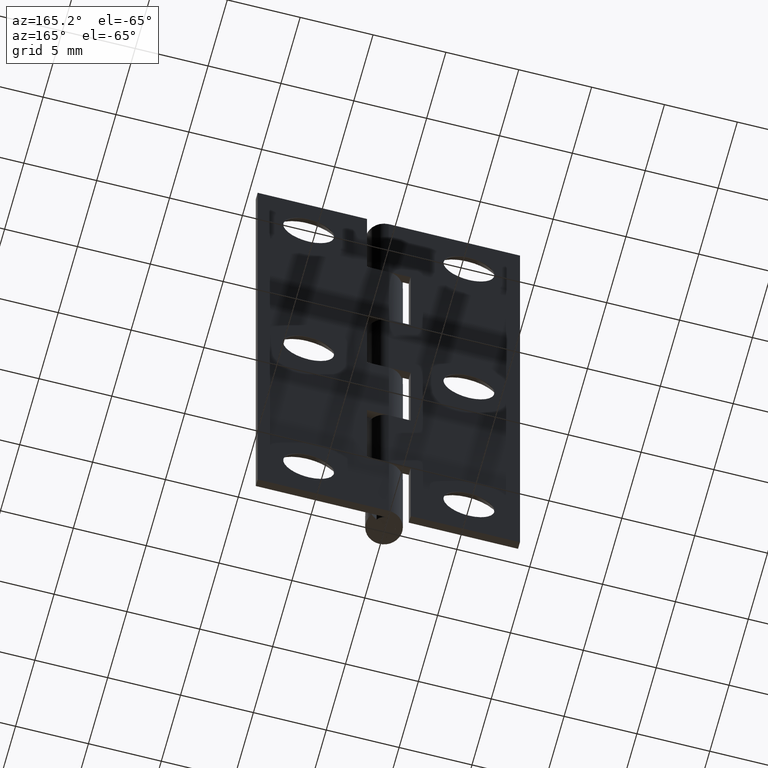
[diagram: clean part render]
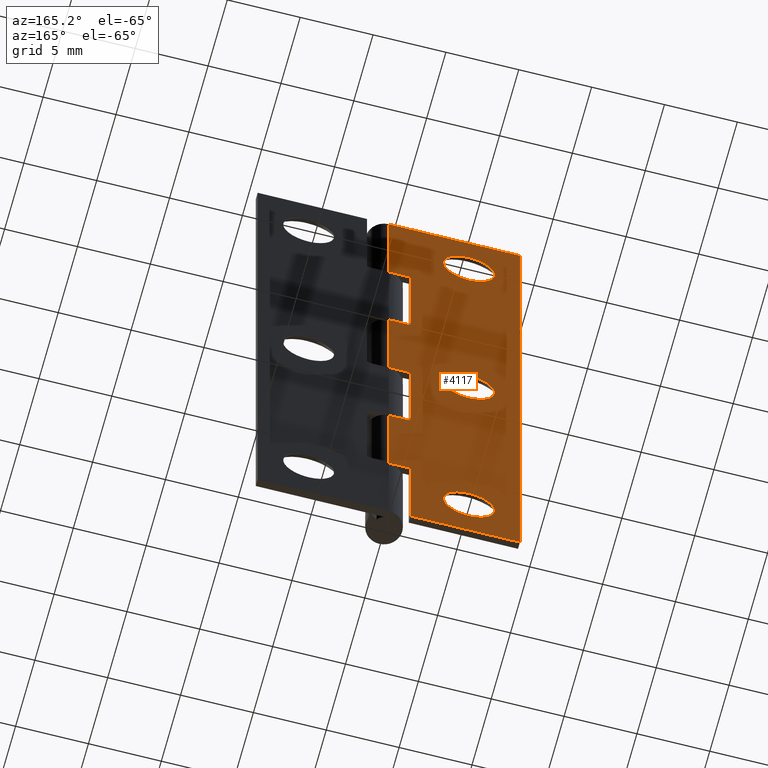
[diagram: same view with one face highlighted and labeled with its STEP entity id]
A machine part, auxiliary view. The second image highlights one B-rep face of the part: STEP entity #4117.
In plain terms, the highlighted face is a freeform B-spline surface patch.
Its self-contained STEP definition (entity closure, byte-faithful):
#2295=CARTESIAN_POINT('',(-4.558762897021225,1.250000000000000,42.475321224673337));
#2296=VERTEX_POINT('',#2295);
#2302=CARTESIAN_POINT('',(-5.500000000000000,1.250000000000000,39.250000000000000));
#2303=VERTEX_POINT('',#2302);
#2304=CARTESIAN_POINT('',(-5.500000000000000,1.250000000000000,39.250000000000000));
#2305=CARTESIAN_POINT('',(-3.750000000000000,1.250000000000000,39.250000000000007));
#2306=CARTESIAN_POINT('',(-3.750000000000000,1.250000000000000,41.0));
#2307=CARTESIAN_POINT('',(-3.750000000000000,1.250000000000000,41.959340275266690));
#2308=CARTESIAN_POINT('',(-4.558762897021225,1.250000000000000,42.475321224673344));
#2316=(BOUNDED_CURVE()B_SPLINE_CURVE(2,(#2304,#2305,#2306,#2307,#2308),.UNSPECIFIED.,.F.,.U.)B_SPLINE_CURVE_WITH_KNOTS((3,2,3),(0.0,0.250000000000000,0.407950297421891),.UNSPECIFIED.)CURVE()GEOMETRIC_REPRESENTATION_ITEM()RATIONAL_B_SPLINE_CURVE((1.0,0.707106781186547,1.0,0.814949715902240,0.863729411094454))REPRESENTATION_ITEM(''));
#2317=EDGE_CURVE('',#2303,#2296,#2316,.T.);
#2319=CARTESIAN_POINT('',(-7.244605423650906,1.250000000000000,41.137302278810431));
#2320=VERTEX_POINT('',#2319);
#2321=CARTESIAN_POINT('',(-7.244605423650906,1.250000000000000,41.137302278810431));
#2322=CARTESIAN_POINT('',(-7.249999999999999,1.250000000000000,41.068757115264603));
#2323=CARTESIAN_POINT('',(-7.249999999999999,1.250000000000000,41.0));
#2324=CARTESIAN_POINT('',(-7.249999999999999,1.250000000000000,39.250000000000007));
#2325=CARTESIAN_POINT('',(-5.500000000000000,1.250000000000000,39.250000000000000));
#2333=(BOUNDED_CURVE()B_SPLINE_CURVE(2,(#2321,#2322,#2323,#2324,#2325),.UNSPECIFIED.,.F.,.U.)B_SPLINE_CURVE_WITH_KNOTS((3,2,3),(0.736331412522463,0.750000000000000,1.0),.UNSPECIFIED.)CURVE()GEOMETRIC_REPRESENTATION_ITEM()RATIONAL_B_SPLINE_CURVE((0.969723589677193,0.983986253668284,1.0,0.707106781186547,1.0))REPRESENTATION_ITEM(''));
#2334=EDGE_CURVE('',#2320,#2303,#2333,.T.);
#2438=CARTESIAN_POINT('',(-5.500000000000000,1.250000000000000,42.750000000000000));
#2439=VERTEX_POINT('',#2438);
#2440=CARTESIAN_POINT('',(-5.500000000000000,1.250000000000000,42.750000000000000));
#2441=CARTESIAN_POINT('',(-7.117684419537733,1.250000000000000,42.750000000000000));
#2442=CARTESIAN_POINT('',(-7.244605423650906,1.250000000000000,41.137302278810431));
#2450=(BOUNDED_CURVE()B_SPLINE_CURVE(2,(#2440,#2441,#2442),.UNSPECIFIED.,.F.,.U.)B_SPLINE_CURVE_WITH_KNOTS((3,3),(0.500000000000000,0.736331412522463),.UNSPECIFIED.)CURVE()GEOMETRIC_REPRESENTATION_ITEM()RATIONAL_B_SPLINE_CURVE((1.0,0.723120527518264,0.969723589677193))REPRESENTATION_ITEM(''));
#2451=EDGE_CURVE('',#2439,#2320,#2450,.T.);
#2453=CARTESIAN_POINT('',(-4.558762897021225,1.250000000000000,42.475321224673337));
#2454=CARTESIAN_POINT('',(-4.989302052269124,1.250000000000000,42.749999999999993));
#2455=CARTESIAN_POINT('',(-5.500000000000000,1.250000000000000,42.750000000000000));
#2463=(BOUNDED_CURVE()B_SPLINE_CURVE(2,(#2453,#2454,#2455),.UNSPECIFIED.,.F.,.U.)B_SPLINE_CURVE_WITH_KNOTS((3,3),(0.407950297421892,0.500000000000000),.UNSPECIFIED.)CURVE()GEOMETRIC_REPRESENTATION_ITEM()RATIONAL_B_SPLINE_CURVE((0.863729411094454,0.892157065284307,1.0))REPRESENTATION_ITEM(''));
#2464=EDGE_CURVE('',#2296,#2439,#2463,.T.);
#2639=CARTESIAN_POINT('',(-4.558762897021225,1.250000000000000,23.975321224673340));
#2640=VERTEX_POINT('',#2639);
#2646=CARTESIAN_POINT('',(-5.500000000000000,1.250000000000000,20.750000000000000));
#2647=VERTEX_POINT('',#2646);
#2648=CARTESIAN_POINT('',(-5.500000000000000,1.250000000000000,20.750000000000000));
#2649=CARTESIAN_POINT('',(-3.750000000000000,1.250000000000000,20.750000000000000));
#2650=CARTESIAN_POINT('',(-3.750000000000000,1.250000000000000,22.500000000000000));
#2651=CARTESIAN_POINT('',(-3.750000000000000,1.250000000000000,23.459340275266690));
#2652=CARTESIAN_POINT('',(-4.558762897021225,1.250000000000000,23.975321224673333));
#2660=(BOUNDED_CURVE()B_SPLINE_CURVE(2,(#2648,#2649,#2650,#2651,#2652),.UNSPECIFIED.,.F.,.U.)B_SPLINE_CURVE_WITH_KNOTS((3,2,3),(0.0,0.250000000000000,0.407950297421891),.UNSPECIFIED.)CURVE()GEOMETRIC_REPRESENTATION_ITEM()RATIONAL_B_SPLINE_CURVE((1.0,0.707106781186547,1.0,0.814949715902240,0.863729411094454))REPRESENTATION_ITEM(''));
#2661=EDGE_CURVE('',#2647,#2640,#2660,.T.);
#2663=CARTESIAN_POINT('',(-7.244605423650905,1.250000000000000,22.637302278810431));
#2664=VERTEX_POINT('',#2663);
#2665=CARTESIAN_POINT('',(-7.244605423650905,1.250000000000000,22.637302278810427));
#2666=CARTESIAN_POINT('',(-7.250000000000000,1.250000000000000,22.568757115264610));
#2667=CARTESIAN_POINT('',(-7.249999999999999,1.250000000000000,22.500000000000000));
#2668=CARTESIAN_POINT('',(-7.249999999999999,1.250000000000000,20.750000000000000));
#2669=CARTESIAN_POINT('',(-5.500000000000000,1.250000000000000,20.750000000000000));
#2677=(BOUNDED_CURVE()B_SPLINE_CURVE(2,(#2665,#2666,#2667,#2668,#2669),.UNSPECIFIED.,.F.,.U.)B_SPLINE_CURVE_WITH_KNOTS((3,2,3),(0.736331412522463,0.750000000000000,1.0),.UNSPECIFIED.)CURVE()GEOMETRIC_REPRESENTATION_ITEM()RATIONAL_B_SPLINE_CURVE((0.969723589677193,0.983986253668284,1.0,0.707106781186547,1.0))REPRESENTATION_ITEM(''));
#2678=EDGE_CURVE('',#2664,#2647,#2677,.T.);
#2782=CARTESIAN_POINT('',(-5.500000000000000,1.250000000000000,24.250000000000000));
#2783=VERTEX_POINT('',#2782);
#2784=CARTESIAN_POINT('',(-5.500000000000000,1.250000000000000,24.250000000000000));
#2785=CARTESIAN_POINT('',(-7.117684419537731,1.250000000000000,24.250000000000000));
#2786=CARTESIAN_POINT('',(-7.244605423650905,1.250000000000000,22.637302278810424));
#2794=(BOUNDED_CURVE()B_SPLINE_CURVE(2,(#2784,#2785,#2786),.UNSPECIFIED.,.F.,.U.)B_SPLINE_CURVE_WITH_KNOTS((3,3),(0.500000000000000,0.736331412522463),.UNSPECIFIED.)CURVE()GEOMETRIC_REPRESENTATION_ITEM()RATIONAL_B_SPLINE_CURVE((1.0,0.723120527518264,0.969723589677192))REPRESENTATION_ITEM(''));
#2795=EDGE_CURVE('',#2783,#2664,#2794,.T.);
#2797=CARTESIAN_POINT('',(-4.558762897021225,1.250000000000000,23.975321224673337));
#2798=CARTESIAN_POINT('',(-4.989302052269124,1.250000000000000,24.249999999999993));
#2799=CARTESIAN_POINT('',(-5.500000000000000,1.250000000000000,24.250000000000000));
#2807=(BOUNDED_CURVE()B_SPLINE_CURVE(2,(#2797,#2798,#2799),.UNSPECIFIED.,.F.,.U.)B_SPLINE_CURVE_WITH_KNOTS((3,3),(0.407950297421892,0.500000000000000),.UNSPECIFIED.)CURVE()GEOMETRIC_REPRESENTATION_ITEM()RATIONAL_B_SPLINE_CURVE((0.863729411094454,0.892157065284307,1.0))REPRESENTATION_ITEM(''));
#2808=EDGE_CURVE('',#2640,#2783,#2807,.T.);
#2977=CARTESIAN_POINT('',(-3.761428913972535,1.250000000000000,3.800323815067302));
#2978=VERTEX_POINT('',#2977);
#2984=CARTESIAN_POINT('',(-5.500000000000000,1.250000000000000,2.250000000000000));
#2985=VERTEX_POINT('',#2984);
#2986=CARTESIAN_POINT('',(-3.761428913972535,1.250000000000000,3.800323815067303));
#2987=CARTESIAN_POINT('',(-3.939484779089450,1.250000000000000,2.250000000000000));
#2988=CARTESIAN_POINT('',(-5.500000000000000,1.250000000000000,2.250000000000000));
#2996=(BOUNDED_CURVE()B_SPLINE_CURVE(2,(#2986,#2987,#2988),.UNSPECIFIED.,.F.,.U.)B_SPLINE_CURVE_WITH_KNOTS((3,3),(0.269767760089002,0.500000000000000),.UNSPECIFIED.)CURVE()GEOMETRIC_REPRESENTATION_ITEM()RATIONAL_B_SPLINE_CURVE((0.957343728151316,0.730266152711347,1.0))REPRESENTATION_ITEM(''));
#2997=EDGE_CURVE('',#2978,#2985,#2996,.T.);
#2999=CARTESIAN_POINT('',(-7.246735897174608,1.250000000000000,3.893165054773182));
#3000=VERTEX_POINT('',#2999);
#3001=CARTESIAN_POINT('',(-5.500000000000000,1.250000000000000,2.250000000000000));
#3002=CARTESIAN_POINT('',(-7.146235615119422,1.250000000000000,2.250000000000001));
#3003=CARTESIAN_POINT('',(-7.246735897174608,1.250000000000000,3.893165054773182));
#3011=(BOUNDED_CURVE()B_SPLINE_CURVE(2,(#3001,#3002,#3003),.UNSPECIFIED.,.F.,.U.)B_SPLINE_CURVE_WITH_KNOTS((3,3),(0.500000000000000,0.739332962036338),.UNSPECIFIED.)CURVE()GEOMETRIC_REPRESENTATION_ITEM()RATIONAL_B_SPLINE_CURVE((1.0,0.719603993524076,0.976072041232497))REPRESENTATION_ITEM(''));
#3012=EDGE_CURVE('',#2985,#3000,#3011,.T.);
#3107=CARTESIAN_POINT('',(-5.500000000000000,1.250000000000000,5.750000000000000));
#3108=VERTEX_POINT('',#3107);
#3109=CARTESIAN_POINT('',(-7.246735897174608,1.250000000000000,3.893165054773182));
#3110=CARTESIAN_POINT('',(-7.249999999999999,1.250000000000000,3.946532663183733));
#3111=CARTESIAN_POINT('',(-7.249999999999999,1.250000000000000,4.0));
#3112=CARTESIAN_POINT('',(-7.249999999999999,1.250000000000000,5.750000000000001));
#3113=CARTESIAN_POINT('',(-5.500000000000000,1.250000000000000,5.750000000000000));
#3121=(BOUNDED_CURVE()B_SPLINE_CURVE(2,(#3109,#3110,#3111,#3112,#3113),.UNSPECIFIED.,.F.,.U.)B_SPLINE_CURVE_WITH_KNOTS((3,2,3),(0.739332962036339,0.750000000000000,1.0),.UNSPECIFIED.)CURVE()GEOMETRIC_REPRESENTATION_ITEM()RATIONAL_B_SPLINE_CURVE((0.976072041232500,0.987502787662472,1.0,0.707106781186547,1.0))REPRESENTATION_ITEM(''));
#3122=EDGE_CURVE('',#3000,#3108,#3121,.T.);
#3124=CARTESIAN_POINT('',(-5.500000000000000,1.250000000000000,5.750000000000000));
#3125=CARTESIAN_POINT('',(-3.750000000000000,1.250000000000000,5.750000000000001));
#3126=CARTESIAN_POINT('',(-3.750000000000000,1.250000000000000,4.0));
#3127=CARTESIAN_POINT('',(-3.750000000000000,1.250000000000000,3.899834816855083));
#3128=CARTESIAN_POINT('',(-3.761428913972535,1.250000000000000,3.800323815067303));
#3136=(BOUNDED_CURVE()B_SPLINE_CURVE(2,(#3124,#3125,#3126,#3127,#3128),.UNSPECIFIED.,.F.,.U.)B_SPLINE_CURVE_WITH_KNOTS((3,2,3),(0.0,0.250000000000000,0.269767760089002),.UNSPECIFIED.)CURVE()GEOMETRIC_REPRESENTATION_ITEM()RATIONAL_B_SPLINE_CURVE((1.0,0.707106781186547,1.0,0.976840628475201,0.957343728151316))REPRESENTATION_ITEM(''));
#3137=EDGE_CURVE('',#3108,#2978,#3136,.T.);
#3284=CARTESIAN_POINT('',(-1.500000000000000,1.249999999999972,30.0));
#3285=VERTEX_POINT('',#3284);
#3291=CARTESIAN_POINT('',(-1.500000000000000,1.249999999999972,37.500000000000000));
#3292=VERTEX_POINT('',#3291);
#3293=CARTESIAN_POINT('',(-1.500000000000000,1.249999999999972,30.0));
#3294=CARTESIAN_POINT('',(-1.500000000000000,1.249999999999972,37.500000000000000));
#3295=QUASI_UNIFORM_CURVE('',1,(#3293,#3294),.UNSPECIFIED.,.F.,.U.);
#3296=EDGE_CURVE('',#3285,#3292,#3295,.T.);
#3346=CARTESIAN_POINT('',(0.0,1.250000000000000,30.0));
#3347=VERTEX_POINT('',#3346);
#3367=CARTESIAN_POINT('',(0.0,1.250000000000000,30.0));
#3368=CARTESIAN_POINT('',(-1.500000000000000,1.249999999999972,30.0));
#3369=QUASI_UNIFORM_CURVE('',1,(#3367,#3368),.UNSPECIFIED.,.F.,.U.);
#3370=EDGE_CURVE('',#3347,#3285,#3369,.T.);
#3389=CARTESIAN_POINT('',(0.0,1.250000000000000,37.500000000000000));
#3390=VERTEX_POINT('',#3389);
#3391=CARTESIAN_POINT('',(-1.500000000000000,1.249999999999972,37.500000000000000));
#3392=CARTESIAN_POINT('',(0.0,1.250000000000000,37.500000000000000));
#3393=QUASI_UNIFORM_CURVE('',1,(#3391,#3392),.UNSPECIFIED.,.F.,.U.);
#3394=EDGE_CURVE('',#3292,#3390,#3393,.T.);
#3453=CARTESIAN_POINT('',(-1.500000000000000,1.249999999999972,15.0));
#3454=VERTEX_POINT('',#3453);
#3460=CARTESIAN_POINT('',(-1.500000000000000,1.249999999999972,22.500000000000000));
#3461=VERTEX_POINT('',#3460);
#3462=CARTESIAN_POINT('',(-1.500000000000000,1.249999999999972,22.500000000000000));
#3463=CARTESIAN_POINT('',(-1.500000000000000,1.249999999999972,15.0));
#3464=QUASI_UNIFORM_CURVE('',1,(#3462,#3463),.UNSPECIFIED.,.F.,.U.);
#3465=EDGE_CURVE('',#3461,#3454,#3464,.T.);
#3488=CARTESIAN_POINT('',(0.0,1.249999999999972,22.500000000000000));
#3489=VERTEX_POINT('',#3488);
#3490=CARTESIAN_POINT('',(0.0,1.249999999999972,22.500000000000000));
#3491=CARTESIAN_POINT('',(-1.500000000000000,1.249999999999972,22.500000000000000));
#3492=QUASI_UNIFORM_CURVE('',1,(#3490,#3491),.UNSPECIFIED.,.F.,.U.);
#3493=EDGE_CURVE('',#3489,#3461,#3492,.T.);
#3587=CARTESIAN_POINT('',(0.0,1.249999999999972,15.0));
#3588=VERTEX_POINT('',#3587);
#3608=CARTESIAN_POINT('',(-1.500000000000000,1.249999999999972,15.0));
#3609=CARTESIAN_POINT('',(0.0,1.249999999999972,15.0));
#3610=QUASI_UNIFORM_CURVE('',1,(#3608,#3609),.UNSPECIFIED.,.F.,.U.);
#3611=EDGE_CURVE('',#3454,#3588,#3610,.T.);
#3629=CARTESIAN_POINT('',(-1.500000000000000,1.249999999999972,0.0));
#3630=VERTEX_POINT('',#3629);
#3636=CARTESIAN_POINT('',(-1.500000000000000,1.249999999999972,7.500000000000000));
#3637=VERTEX_POINT('',#3636);
#3638=CARTESIAN_POINT('',(-1.500000000000000,1.249999999999972,7.500000000000000));
#3639=CARTESIAN_POINT('',(-1.500000000000000,1.249999999999972,0.0));
#3640=QUASI_UNIFORM_CURVE('',1,(#3638,#3639),.UNSPECIFIED.,.F.,.U.);
#3641=EDGE_CURVE('',#3637,#3630,#3640,.T.);
#3664=CARTESIAN_POINT('',(0.0,1.249999999999972,7.500000000000000));
#3665=VERTEX_POINT('',#3664);
#3666=CARTESIAN_POINT('',(0.0,1.249999999999972,7.500000000000000));
#3667=CARTESIAN_POINT('',(-1.500000000000000,1.249999999999972,7.500000000000000));
#3668=QUASI_UNIFORM_CURVE('',1,(#3666,#3667),.UNSPECIFIED.,.F.,.U.);
#3669=EDGE_CURVE('',#3665,#3637,#3668,.T.);
#3763=CARTESIAN_POINT('',(0.0,1.250000000000000,45.0));
#3764=VERTEX_POINT('',#3763);
#3784=CARTESIAN_POINT('',(-9.0,1.250000000000000,45.0));
#3785=VERTEX_POINT('',#3784);
#3786=CARTESIAN_POINT('',(-9.0,1.250000000000000,45.0));
#3787=CARTESIAN_POINT('',(0.0,1.250000000000000,45.0));
#3788=QUASI_UNIFORM_CURVE('',1,(#3786,#3787),.UNSPECIFIED.,.F.,.U.);
#3789=EDGE_CURVE('',#3785,#3764,#3788,.T.);
#3813=CARTESIAN_POINT('',(-9.0,1.250000000000000,0.0));
#3814=VERTEX_POINT('',#3813);
#3826=CARTESIAN_POINT('',(-9.0,1.250000000000000,45.0));
#3827=CARTESIAN_POINT('',(-9.0,1.250000000000000,0.0));
#3828=QUASI_UNIFORM_CURVE('',1,(#3826,#3827),.UNSPECIFIED.,.F.,.U.);
#3829=EDGE_CURVE('',#3785,#3814,#3828,.T.);
#3839=CARTESIAN_POINT('',(-9.0,1.250000000000000,0.0));
#3840=CARTESIAN_POINT('',(-1.500000000000000,1.249999999999972,0.0));
#3841=QUASI_UNIFORM_CURVE('',1,(#3839,#3840),.UNSPECIFIED.,.F.,.U.);
#3842=EDGE_CURVE('',#3814,#3630,#3841,.T.);
#3882=CARTESIAN_POINT('',(0.0,1.250000000000000,45.0));
#3883=CARTESIAN_POINT('',(0.0,1.250000000000000,37.500000000000000));
#3884=QUASI_UNIFORM_CURVE('',1,(#3882,#3883),.UNSPECIFIED.,.F.,.U.);
#3885=EDGE_CURVE('',#3764,#3390,#3884,.T.);
#3920=CARTESIAN_POINT('',(0.0,1.249999999999972,15.0));
#3921=CARTESIAN_POINT('',(0.0,1.249999999999972,7.500000000000000));
#3922=QUASI_UNIFORM_CURVE('',1,(#3920,#3921),.UNSPECIFIED.,.F.,.U.);
#3923=EDGE_CURVE('',#3588,#3665,#3922,.T.);
#4074=CARTESIAN_POINT('',(-9.449549982556253,1.250000000000000,-2.247749912781269));
#4075=CARTESIAN_POINT('',(-9.449549982556253,1.250000000000000,47.247751119775323));
#4076=CARTESIAN_POINT('',(0.449550223955065,1.250000000000000,-2.247749912781269));
#4077=CARTESIAN_POINT('',(0.449550223955065,1.250000000000000,47.247751119775323));
#4078=B_SPLINE_SURFACE_WITH_KNOTS('',1,1,((#4074,#4076),(#4075,#4077)),.UNSPECIFIED.,.F.,.F.,.U.,(2,2),(2,2),(0.0,49.495501032556589),(0.0,9.899100206511317),.UNSPECIFIED.);
#4079=ORIENTED_EDGE('',*,*,#3394,.F.);
#4080=ORIENTED_EDGE('',*,*,#3296,.F.);
#4081=ORIENTED_EDGE('',*,*,#3370,.F.);
#4082=CARTESIAN_POINT('',(0.0,1.250000000000000,30.0));
#4083=CARTESIAN_POINT('',(0.0,1.249999999999972,22.500000000000000));
#4084=QUASI_UNIFORM_CURVE('',1,(#4082,#4083),.UNSPECIFIED.,.F.,.U.);
#4085=EDGE_CURVE('',#3347,#3489,#4084,.T.);
#4086=ORIENTED_EDGE('',*,*,#4085,.T.);
#4087=ORIENTED_EDGE('',*,*,#3493,.T.);
#4088=ORIENTED_EDGE('',*,*,#3465,.T.);
#4089=ORIENTED_EDGE('',*,*,#3611,.T.);
#4090=ORIENTED_EDGE('',*,*,#3923,.T.);
#4091=ORIENTED_EDGE('',*,*,#3669,.T.);
#4092=ORIENTED_EDGE('',*,*,#3641,.T.);
#4093=ORIENTED_EDGE('',*,*,#3842,.F.);
#4094=ORIENTED_EDGE('',*,*,#3829,.F.);
#4095=ORIENTED_EDGE('',*,*,#3789,.T.);
#4096=ORIENTED_EDGE('',*,*,#3885,.T.);
#4097=EDGE_LOOP('',(#4079,#4080,#4081,#4086,#4087,#4088,#4089,#4090,#4091,#4092,#4093,#4094,#4095,#4096));
#4098=FACE_OUTER_BOUND('',#4097,.T.);
#4099=ORIENTED_EDGE('',*,*,#3012,.F.);
#4100=ORIENTED_EDGE('',*,*,#2997,.F.);
#4101=ORIENTED_EDGE('',*,*,#3137,.F.);
#4102=ORIENTED_EDGE('',*,*,#3122,.F.);
#4103=EDGE_LOOP('',(#4099,#4100,#4101,#4102));
#4104=FACE_BOUND('',#4103,.T.);
#4105=ORIENTED_EDGE('',*,*,#2795,.T.);
#4106=ORIENTED_EDGE('',*,*,#2678,.T.);
#4107=ORIENTED_EDGE('',*,*,#2661,.T.);
#4108=ORIENTED_EDGE('',*,*,#2808,.T.);
#4109=EDGE_LOOP('',(#4105,#4106,#4107,#4108));
#4110=FACE_BOUND('',#4109,.T.);
#4111=ORIENTED_EDGE('',*,*,#2451,.T.);
#4112=ORIENTED_EDGE('',*,*,#2334,.T.);
#4113=ORIENTED_EDGE('',*,*,#2317,.T.);
#4114=ORIENTED_EDGE('',*,*,#2464,.T.);
#4115=EDGE_LOOP('',(#4111,#4112,#4113,#4114));
#4116=FACE_BOUND('',#4115,.T.);
#4117=ADVANCED_FACE('',(#4098,#4104,#4110,#4116),#4078,.T.);